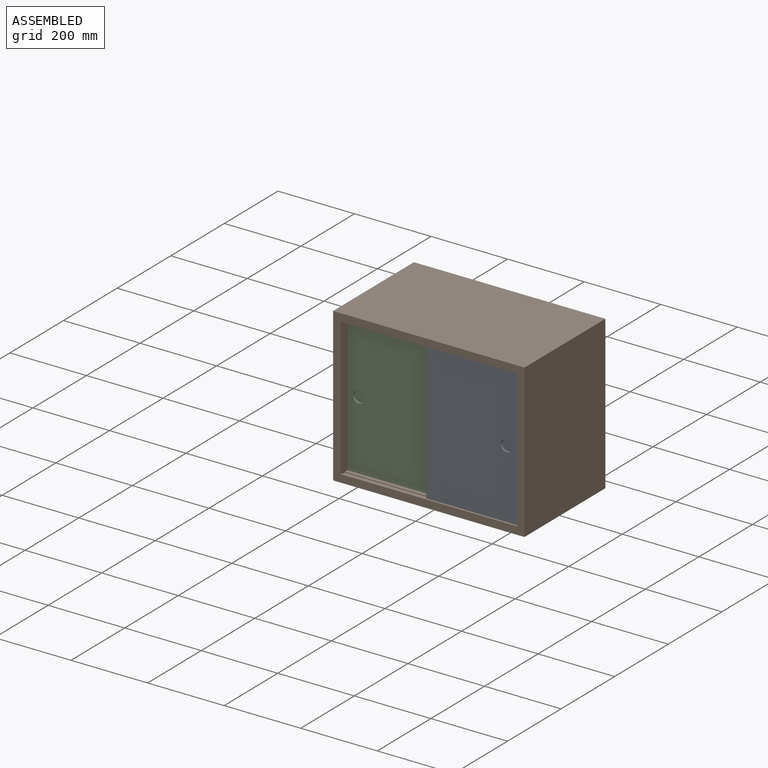
[diagram: assembled view]
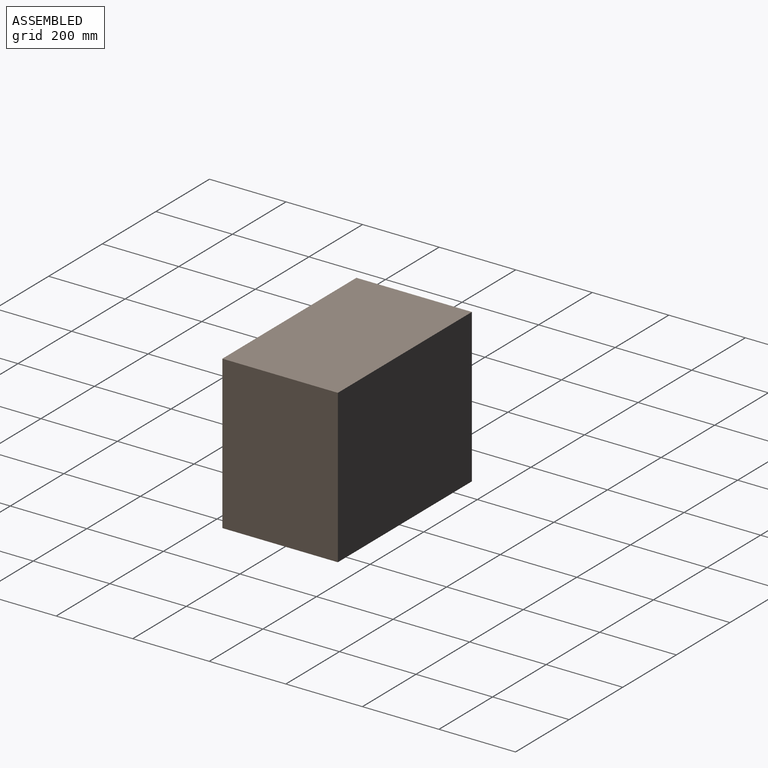
[diagram: assembled view, second angle]
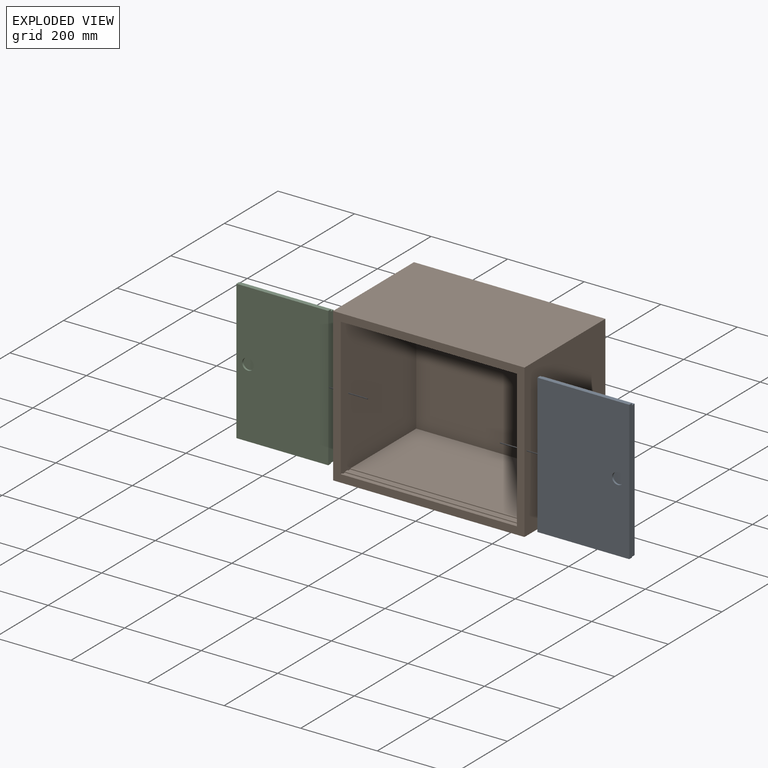
[diagram: exploded view]
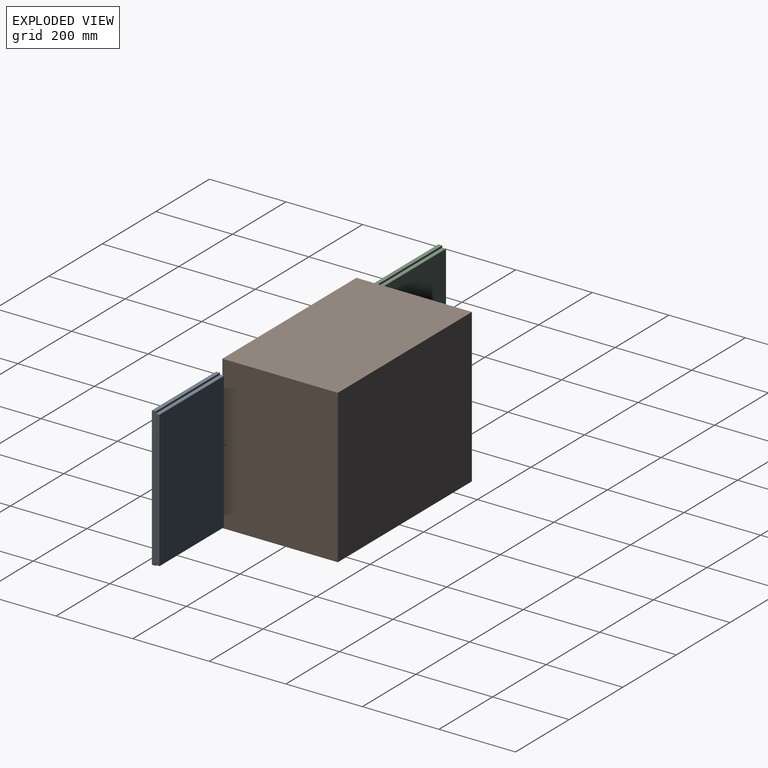
[diagram: exploded view, second angle]
ASSEMBLY  parts=3 mates=2
PART A: 12 faces, bbox 240x20x364.5 mm
  f0: plane 364.5x240mm, normal (0,-1,0), area 86773.1mm2, adj f3,f4,f7,f8,f10
  f1: plane 357.5x240mm, normal (0,1,0), area 85800mm2, adj f3,f6,f7,f9
  f2: plane 240x5mm, normal (0,1,0), area 1200mm2, adj f3,f7,f8,f9
  f3: plane 364.5x20mm, normal (-1,0,0), area 7220mm2, adj f0,f1,f2,f4,f5,f6,f8,f9
  f4: plane 240x10mm, normal (0,0,-1), area 2400mm2, adj f0,f3,f5,f7
  f5: plane 240x2mm, normal (0,1,0), area 480mm2, adj f3,f4,f6,f7
  f6: plane 240x10mm, normal (0,0,-1), area 2400mm2, adj f1,f3,f5,f7
  f7: plane 364.5x20mm, normal (1,0,0), area 7220mm2, adj f0,f1,f2,f4,f5,f6,f8,f9
  f8: plane 240x10mm, normal (0,0,1), area 2400mm2, adj f0,f2,f3,f7
  f9: plane 240x10mm, normal (0,0,1), area 2400mm2, adj f1,f2,f3,f7
  f10: cylinder r=15mm len=30mm, axis (0,-1,0), area 471.2mm2, adj f0,f11
  f11: plane 30x30mm, normal (0,-1,0), area 706.9mm2, adj f10
PART B: 27 faces, bbox 500x301.6x400 mm
  f0: plane 460x10mm, normal (0,0,-1), area 4600mm2, adj f10,f12,f21,f24
  f1: plane 460x246.65mm, normal (0,0,-1), area 113456.7mm2, adj f10,f11,f12,f22
  f2: plane 460x10mm, normal (0,0,1), area 4600mm2, adj f10,f12,f17,f19
  f3: plane 460x246.65mm, normal (0,0,1), area 113456.7mm2, adj f10,f11,f12,f16
  f4: plane 500x400mm, normal (0,-1,0), area 34400mm2, adj f5,f7,f8,f9,f10,f12,f13,f14
  f5: plane 400x301.65mm, normal (1,0,0), area 120658mm2, adj f4,f6,f8,f9
  f6: plane 500x400mm, normal (0,1,0), area 200000mm2, adj f5,f7,f8,f9
  f7: plane 400x301.65mm, normal (-1,0,0), area 120658mm2, adj f4,f6,f8,f9
  f8: plane 500x301.65mm, normal (0,0,1), area 150822.5mm2, adj f4,f5,f6,f7
  f9: plane 500x301.65mm, normal (0,0,-1), area 150822.5mm2, adj f4,f5,f6,f7
  f10: plane 367x281.65mm, normal (-1,0,0), area 101532.2mm2, adj f0,f1,f2,f3,f4,f11,f13,f14
  f11: plane 460x360mm, normal (0,-1,0), area 165600mm2, adj f1,f3,f10,f12
  f12: plane 367x281.65mm, normal (1,0,0), area 101532.2mm2, adj f0,f1,f2,f3,f4,f11,f13,f14
  f13: plane 460x5mm, normal (0,0,-1), area 2300mm2, adj f4,f10,f12,f25
  f14: plane 460x5mm, normal (0,0,1), area 2300mm2, adj f4,f10,f12,f20
  f15: plane 460x10mm, normal (0,0,1), area 4600mm2, adj f10,f12,f16,f17
  f16: plane 460x2mm, normal (0,-1,0), area 920mm2, adj f3,f10,f12,f15
  f17: plane 460x2mm, normal (0,1,0), area 920mm2, adj f2,f10,f12,f15
  f18: plane 460x10mm, normal (0,0,1), area 4600mm2, adj f10,f12,f19,f20
  f19: plane 460x2mm, normal (0,-1,0), area 920mm2, adj f2,f10,f12,f18
  f20: plane 460x2mm, normal (0,1,0), area 920mm2, adj f10,f12,f14,f18
  f21: plane 460x5mm, normal (0,1,0), area 2300mm2, adj f0,f10,f12,f23
  f22: plane 460x5mm, normal (0,-1,0), area 2300mm2, adj f1,f10,f12,f23
  f23: plane 460x10mm, normal (0,0,-1), area 4600mm2, adj f10,f12,f21,f22
  f24: plane 460x5mm, normal (0,-1,0), area 2300mm2, adj f0,f10,f12,f26
  f25: plane 460x5mm, normal (0,1,0), area 2300mm2, adj f10,f12,f13,f26
  f26: plane 460x10mm, normal (0,0,-1), area 4600mm2, adj f10,f12,f24,f25
PART C: 12 faces, bbox 240x20x364.5 mm
  f0: plane 364.5x240mm, normal (0,-1,0), area 86773.1mm2, adj f3,f4,f7,f8,f10
  f1: plane 357.5x240mm, normal (0,1,0), area 85800mm2, adj f3,f6,f7,f9
  f2: plane 240x5mm, normal (0,1,0), area 1200mm2, adj f3,f7,f8,f9
  f3: plane 364.5x20mm, normal (1,0,0), area 7220mm2, adj f0,f1,f2,f4,f5,f6,f8,f9
  f4: plane 240x10mm, normal (0,0,-1), area 2400mm2, adj f0,f3,f5,f7
  f5: plane 240x2mm, normal (0,1,0), area 480mm2, adj f3,f4,f6,f7
  f6: plane 240x10mm, normal (0,0,-1), area 2400mm2, adj f1,f3,f5,f7
  f7: plane 364.5x20mm, normal (-1,0,0), area 7220mm2, adj f0,f1,f2,f4,f5,f6,f8,f9
  f8: plane 240x10mm, normal (0,0,1), area 2400mm2, adj f0,f2,f3,f7
  f9: plane 240x10mm, normal (0,0,1), area 2400mm2, adj f1,f2,f3,f7
  f10: cylinder r=15mm len=30mm, axis (0,-1,0), area 471.2mm2, adj f0,f11
  f11: plane 30x30mm, normal (0,-1,0), area 706.9mm2, adj f10
PLACE A at identity
PLACE B at identity fixed
PLACE C at identity
MATE slider B.f10 <-> A.f7  axis (-1,0,0) through (230,-135.82,20)mm
MATE slider B.f12 <-> C.f7  axis (1,0,0) through (-230,-115.82,20)mm
